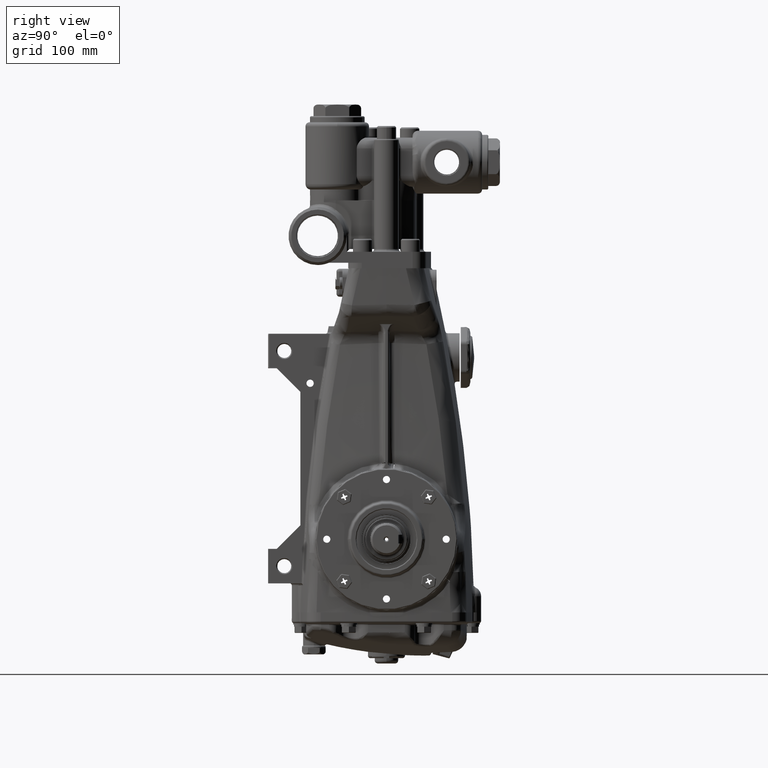
[diagram: clean part render]
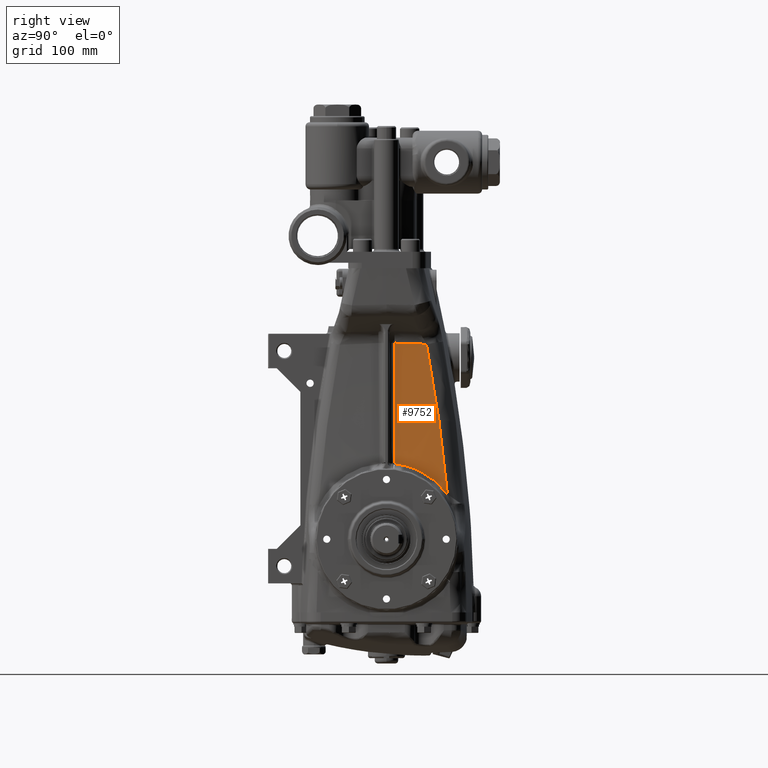
[diagram: same view with one face highlighted and labeled with its STEP entity id]
A machine part, right view. The second image highlights one B-rep face of the part: STEP entity #9752.
In plain terms, the highlighted face is a freeform B-spline surface patch.
Its self-contained STEP definition (entity closure, byte-faithful):
#375 = EDGE_CURVE ( 'NONE', #59738, #2001, #11729, .T. ) ;
#567 = CARTESIAN_POINT ( 'NONE',  ( 3.462199748655711229, -1.175317486001221434, 2.467191601049883332 ) ) ;
#589 = CARTESIAN_POINT ( 'NONE',  ( 3.349694606955345488, 1.975843327882857769, 3.944405702662852509 ) ) ;
#1421 = CARTESIAN_POINT ( 'NONE',  ( 3.477706924474778916, 0.2927391590351144934, 2.768504190964697909 ) ) ;
#2001 = VERTEX_POINT ( 'NONE', #84628 ) ;
#3345 = CARTESIAN_POINT ( 'NONE',  ( 3.347607065475425081, 0.2927214555899236292, 6.262237302901752400 ) ) ;
#3739 = CARTESIAN_POINT ( 'NONE',  ( 3.576220235460202623, 0.6835134000462050885, 0.000000000000000000 ) ) ;
#5196 = CARTESIAN_POINT ( 'NONE',  ( 3.331099628569671012, 1.345986631178405224, 5.774278215223075605 ) ) ;
#5435 = ORIENTED_EDGE ( 'NONE', *, *, #71893, .F. ) ;
#6529 = CARTESIAN_POINT ( 'NONE',  ( 3.412023746535997937, 2.228146809416287066, 1.648877996829962944 ) ) ;
#6976 = FACE_OUTER_BOUND ( 'NONE', #25530, .T. ) ;
#7332 = CARTESIAN_POINT ( 'NONE',  ( 3.472220718430306441, 0.6716334063986347802, 2.701174340641883997 ) ) ;
#7480 = CARTESIAN_POINT ( 'NONE',  ( 3.386209788244205487, 2.139713064070962734, 2.568349735116830068 ) ) ;
#7717 = VERTEX_POINT ( 'NONE', #92963 ) ;
#8309 = CARTESIAN_POINT ( 'NONE',  ( 3.475593993287876771, 0.4834058381449323760, 2.742974295274423380 ) ) ;
#8784 = CARTESIAN_POINT ( 'NONE',  ( 3.433988088125543126, 1.773042593103885567, 2.138417196117650576 ) ) ;
#8902 = CARTESIAN_POINT ( 'NONE',  ( 3.180065221462650360, -1.747121300670816835, 9.081364829396324723 ) ) ;
#9752 = ADVANCED_FACE ( 'NONE', ( #6976 ), #80221, .F. ) ;
#11045 = ORIENTED_EDGE ( 'NONE', *, *, #51086, .F. ) ;
#11102 = CARTESIAN_POINT ( 'NONE',  ( 3.207397325007263156, 1.352893229288899324, 9.081364829396356697 ) ) ;
#11729 = B_SPLINE_CURVE_WITH_KNOTS ( 'NONE', 3,
 ( #79907, #85320, #12650, #42600, #3345, #40657, #19047, #26903, #56354, #49002 ),
 .UNSPECIFIED., .F., .F.,
 ( 4, 3, 3, 4 ),
 ( 0.000000000000000000, 0.01000000000000030378, 0.05000000000002784856, 0.1121356603331099822 ),
 .UNSPECIFIED. ) ;
#12650 = CARTESIAN_POINT ( 'NONE',  ( 3.323190520193768815, 0.2927191873903027264, 6.917950844762834173 ) ) ;
#14363 = CARTESIAN_POINT ( 'NONE',  ( 3.554351997118713413, -1.171670036595711117, 0.000000000000000000 ) ) ;
#14387 = CARTESIAN_POINT ( 'NONE',  ( 3.269692321802373680, 1.460513298219533684, 7.135318008206841256 ) ) ;
#14716 = CARTESIAN_POINT ( 'NONE',  ( 3.469126847361452715, 0.8111619379403480767, 2.662039753391358676 ) ) ;
#14821 = B_SPLINE_CURVE_WITH_KNOTS ( 'NONE', 3,
 ( #75599, #44187, #15683, #96721, #23535, #8784, #75102, #68202, #36797, #45623, #81972, #66738, #89848, #16178, #44641, #14716, #38753, #7332, #46101, #8309, #37288, #1421 ),
 .UNSPECIFIED., .F., .F.,
 ( 4, 2, 2, 2, 2, 2, 2, 2, 2, 2, 4 ),
 ( 9.813077866773594792E-18, 0.007270669729715710169, 0.01454133945943141167, 0.02181200918914711143, 0.02544734405400496044, 0.02908267891886281292, 0.03635334864857851789, 0.04362401837829423673, 0.04725935324315208574, 0.05089468810800994863, 0.05816535783772566054 ),
 .UNSPECIFIED. ) ;
#15683 = CARTESIAN_POINT ( 'NONE',  ( 3.417672550041459090, 2.110429115021122737, 1.801445320440802744 ) ) ;
#15803 = CARTESIAN_POINT ( 'NONE',  ( 3.007765121776432959, -3.046796509488089999, 9.921259842519685179 ) ) ;
#16178 = CARTESIAN_POINT ( 'NONE',  ( 3.463023286000174394, 1.037108040680475796, 2.582588093994256706 ) ) ;
#18469 = CARTESIAN_POINT ( 'NONE',  ( 3.403341269119732893, 2.024586169240023104, 2.467191601049906868 ) ) ;
#19047 = CARTESIAN_POINT ( 'NONE',  ( 3.386674433925234595, 0.2927260709607487077, 5.213095669291894829 ) ) ;
#19060 = B_SPLINE_CURVE_WITH_KNOTS ( 'NONE', 3,
 ( #14387, #89981, #51210, #589, #29580, #7480, #89015, #6529 ),
 .UNSPECIFIED., .F., .F.,
 ( 4, 2, 2, 4 ),
 ( 8.441528768080324345E-17, 0.07039193455788995968, 0.1055879018368349187, 0.1407838691157798916 ),
 .UNSPECIFIED. ) ;
#19444 = CARTESIAN_POINT ( 'NONE',  ( 3.547013876441738489, 1.335291830376295064, 0.000000000000000000 ) ) ;
#19927 = CARTESIAN_POINT ( 'NONE',  ( 3.484935403604872750, -0.6057206102366218259, 2.467191601049883332 ) ) ;
#22677 = CARTESIAN_POINT ( 'NONE',  ( 3.164714206596082491, -3.039356378822984706, 5.774278215223089816 ) ) ;
#22723 = CARTESIAN_POINT ( 'NONE',  ( 3.269692321802373680, 1.460513298219533684, 7.135318008206841256 ) ) ;
#23170 = CARTESIAN_POINT ( 'NONE',  ( 3.289826261678808539, -3.033423029685906602, 2.467191601049866012 ) ) ;
#23535 = CARTESIAN_POINT ( 'NONE',  ( 3.427231623504842339, 1.914841288646969009, 2.010681869798234267 ) ) ;
#23653 = CARTESIAN_POINT ( 'NONE',  ( 3.428323522106980548, -1.729425837595848225, 2.467191601049866900 ) ) ;
#24133 = CARTESIAN_POINT ( 'NONE',  ( 3.183714716260146016, -1.187087684709286384, 9.921259842519649652 ) ) ;
#25530 = EDGE_LOOP ( 'NONE', ( #11045, #67845, #75417, #5435 ) ) ;
#25833 = CARTESIAN_POINT ( 'NONE',  ( 3.336131691620399131, 3.346456692913390540, 0.000000000000000000 ) ) ;
#26321 = CARTESIAN_POINT ( 'NONE',  ( 3.454759606896400381, 1.339861427082650991, 2.467191601049859795 ) ) ;
#26821 = CARTESIAN_POINT ( 'NONE',  ( 3.367677444574750822, -0.2504505581807623948, 5.774278215223089816 ) ) ;
#26903 = CARTESIAN_POINT ( 'NONE',  ( 3.417018087079791933, 0.2927298696226943719, 4.398231824175141469 ) ) ;
#27298 = CARTESIAN_POINT ( 'NONE',  ( 3.244541240855535857, 0.2048016856631995064, 9.081364829396326499 ) ) ;
#27772 = CARTESIAN_POINT ( 'NONE',  ( 3.244541240855531861, -0.2504609453016973797, 9.081364829396326499 ) ) ;
#29580 = CARTESIAN_POINT ( 'NONE',  ( 3.361618648533276410, 2.034251877551805698, 3.486079300572620276 ) ) ;
#30050 = CARTESIAN_POINT ( 'NONE',  ( 3.338676521992537616, -1.180206620310735088, 5.774278215223129784 ) ) ;
#30521 = CARTESIAN_POINT ( 'NONE',  ( 3.336131691620401796, -3.346456692913386544, 0.000000000000000000 ) ) ;
#33676 = CARTESIAN_POINT ( 'NONE',  ( 3.206671794739125225, 0.6886280765714566376, 9.921259842519729588 ) ) ;
#34170 = CARTESIAN_POINT ( 'NONE',  ( 3.370182128241528741, 3.116621155005694366, 0.000000000000000000 ) ) ;
#34665 = CARTESIAN_POINT ( 'NONE',  ( 3.582677165354325233, -0.2504330642496530035, 0.000000000000000000 ) ) ;
#35146 = CARTESIAN_POINT ( 'NONE',  ( 3.088002546773583656, 2.678613266805366599, 9.081364829396360250 ) ) ;
#35317 = B_SPLINE_CURVE_WITH_KNOTS ( 'NONE', 3,
 ( #80940, #67149, #59300, #43142, #65738, #51000 ),
 .UNSPECIFIED., .F., .F.,
 ( 4, 2, 4 ),
 ( 0.004934148018106192940, 0.01978804455404170604, 0.03464194108997721566 ),
 .UNSPECIFIED. ) ;
#36797 = CARTESIAN_POINT ( 'NONE',  ( 3.444332865596592796, 1.542042410792554552, 2.311344156697051400 ) ) ;
#37288 = CARTESIAN_POINT ( 'NONE',  ( 3.476855029519029916, 0.3884509603138865952, 2.758237625161902962 ) ) ;
#37407 = CARTESIAN_POINT ( 'NONE',  ( 3.234376482716079693, -2.497453269063911740, 5.774278215223089816 ) ) ;
#38379 = CARTESIAN_POINT ( 'NONE',  ( 3.520889234658918898, -1.723196813737145172, 0.000000000000000000 ) ) ;
#38753 = CARTESIAN_POINT ( 'NONE',  ( 3.470213245614027109, 0.7650157390332990026, 2.675867407756602478 ) ) ;
#40657 = CARTESIAN_POINT ( 'NONE',  ( 3.367140624842383634, 0.2927236255618101413, 5.737666481446650479 ) ) ;
#41070 = CARTESIAN_POINT ( 'NONE',  ( 3.484300910786971794, 0.6847356054764313082, 2.467191601049853578 ) ) ;
#41546 = CARTESIAN_POINT ( 'NONE',  ( 3.496182075858852656, 2.017557810997037571, 0.000000000000000000 ) ) ;
#42035 = CARTESIAN_POINT ( 'NONE',  ( 3.027047486387744346, 3.128417886226819267, 9.081364829396330052 ) ) ;
#42519 = CARTESIAN_POINT ( 'NONE',  ( 3.056200062463784839, 2.681113705874210940, 9.921259842519724259 ) ) ;
#42600 = CARTESIAN_POINT ( 'NONE',  ( 3.328073829250098647, 0.2927196410302269070, 6.786808136390652280 ) ) ;
#43142 = CARTESIAN_POINT ( 'NONE',  ( 3.291528827503460430, 1.071831288738920085, 7.157747510188548823 ) ) ;
#44187 = CARTESIAN_POINT ( 'NONE',  ( 3.414713312866757278, 2.171058895739299555, 1.726990411664675484 ) ) ;
#44298 = CARTESIAN_POINT ( 'NONE',  ( 2.995305143633843148, 3.129508870004426235, 9.921259842519690508 ) ) ;
#44641 = CARTESIAN_POINT ( 'NONE',  ( 3.465643896110101707, 0.9480041649882693378, 2.617115943367958053 ) ) ;
#45623 = CARTESIAN_POINT ( 'NONE',  ( 3.447712467600018371, 1.461303277406913459, 2.363930898049619422 ) ) ;
#46101 = CARTESIAN_POINT ( 'NONE',  ( 3.473135159087525459, 0.6247011727322953067, 2.712569757845848084 ) ) ;
#46218 = CARTESIAN_POINT ( 'NONE',  ( 3.243259376910913705, -3.346456692913386544, 2.467191601049869121 ) ) ;
#46706 = CARTESIAN_POINT ( 'NONE',  ( 3.304246077622467581, -1.737775380214960919, 5.774278215223091593 ) ) ;
#47981 = EDGE_CURVE ( 'NONE', #7717, #2001, #14821, .T. ) ;
#48426 = CARTESIAN_POINT ( 'NONE',  ( 3.278895081363039754, 2.034007160076365839, 5.774278215223185740 ) ) ;
#49002 = CARTESIAN_POINT ( 'NONE',  ( 3.477706924474778916, 0.2927391590351144934, 2.768504190964697909 ) ) ;
#49396 = CARTESIAN_POINT ( 'NONE',  ( 3.490813648293963123, 0.2047844914236372216, 2.467191601049868233 ) ) ;
#51000 = CARTESIAN_POINT ( 'NONE',  ( 3.269692321802373680, 1.460513298219533684, 7.135318008206841256 ) ) ;
#51086 = EDGE_CURVE ( 'NONE', #59738, #65945, #35317, .T. ) ;
#51210 = CARTESIAN_POINT ( 'NONE',  ( 3.314677885994496087, 1.783796561539602976, 5.316465458283545331 ) ) ;
#51687 = CARTESIAN_POINT ( 'NONE',  ( 3.122716302038380576, 2.047084650748415058, 9.921259842519647876 ) ) ;
#52162 = CARTESIAN_POINT ( 'NONE',  ( 3.383163826581795597, -3.028996562869355369, 0.000000000000000000 ) ) ;
#52635 = CARTESIAN_POINT ( 'NONE',  ( 2.994248404758402149, -3.346456692913386544, 9.081364829396326499 ) ) ;
#53120 = CARTESIAN_POINT ( 'NONE',  ( 3.118770955066280326, -3.346456692913386544, 5.774278215223096922 ) ) ;
#55784 = CARTESIAN_POINT ( 'NONE',  ( 3.152032960981228538, 3.124122137602491467, 5.774278215223089816 ) ) ;
#56354 = CARTESIAN_POINT ( 'NONE',  ( 3.447362342897620557, 0.2927343330170829594, 3.583368001503166589 ) ) ;
#56769 = CARTESIAN_POINT ( 'NONE',  ( 3.213224828743415085, 2.668767787971791261, 5.774278215223104915 ) ) ;
#57236 = CARTESIAN_POINT ( 'NONE',  ( 3.243259376910911929, 3.346456692913388764, 2.467191601049868233 ) ) ;
#59014 = CARTESIAN_POINT ( 'NONE',  ( 3.238563372422959219, -0.6088273537724060436, 9.081364829396299854 ) ) ;
#59300 = CARTESIAN_POINT ( 'NONE',  ( 3.306111735994824663, 0.6824548773842041838, 7.172726748642133110 ) ) ;
#59738 = VERTEX_POINT ( 'NONE', #61972 ) ;
#59976 = CARTESIAN_POINT ( 'NONE',  ( 3.452625984186607155, -2.479611056134223723, 0.000000000000000000 ) ) ;
#61972 = CARTESIAN_POINT ( 'NONE',  ( 3.313423963808419082, 0.2927183479872371707, 7.180236263805937824 ) ) ;
#64109 = CARTESIAN_POINT ( 'NONE',  ( 3.154347447218058598, 2.044436045042683947, 9.081364829396314065 ) ) ;
#64617 = CARTESIAN_POINT ( 'NONE',  ( 3.213268554196682558, -0.2504635833006649825, 9.921259842519685179 ) ) ;
#65085 = CARTESIAN_POINT ( 'NONE',  ( 3.582677165354324789, 0.2047781824377178650, 0.000000000000000000 ) ) ;
#65738 = CARTESIAN_POINT ( 'NONE',  ( 3.281815810567933145, 1.266366989174206203, 7.147771232802056396 ) ) ;
#65945 = VERTEX_POINT ( 'NONE', #22723 ) ;
#66738 = CARTESIAN_POINT ( 'NONE',  ( 3.454235604052612096, 1.296115292389044882, 2.461088219710865665 ) ) ;
#67149 = CARTESIAN_POINT ( 'NONE',  ( 3.310983054772468126, 0.4876467954302492469, 7.177729713678575152 ) ) ;
#67350 = CARTESIAN_POINT ( 'NONE',  ( 2.962623630077036108, -3.346456692913386100, 9.921259842519685179 ) ) ;
#67845 = ORIENTED_EDGE ( 'NONE', *, *, #375, .T. ) ;
#68202 = CARTESIAN_POINT ( 'NONE',  ( 3.442610063453559022, 1.581952432225586680, 2.283835229760922125 ) ) ;
#71000 = CARTESIAN_POINT ( 'NONE',  ( 3.237946347929904878, 0.6881715306006001009, 9.081364829396353144 ) ) ;
#71893 = EDGE_CURVE ( 'NONE', #65945, #7717, #19060, .T. ) ;
#71987 = CARTESIAN_POINT ( 'NONE',  ( 3.338322162289793393, 2.659465695265236018, 2.467191601049872673 ) ) ;
#74253 = CARTESIAN_POINT ( 'NONE',  ( 3.367677444574754375, 0.2047929481494440151, 5.774278215223095145 ) ) ;
#75102 = CARTESIAN_POINT ( 'NONE',  ( 3.437444456445687635, 1.698723534720699924, 2.198762342912546242 ) ) ;
#75417 = ORIENTED_EDGE ( 'NONE', *, *, #47981, .F. ) ;
#75599 = CARTESIAN_POINT ( 'NONE',  ( 3.412023746535997937, 2.228146809416287066, 1.648877996829962944 ) ) ;
#75720 = CARTESIAN_POINT ( 'NONE',  ( 3.215099385775566976, -1.185694051413377359, 9.081364829396305183 ) ) ;
#76688 = CARTESIAN_POINT ( 'NONE',  ( 3.109258477031473955, -2.508475066898988803, 9.081364829396324723 ) ) ;
#78388 = CARTESIAN_POINT ( 'NONE',  ( 3.118770955066280326, 3.346456692913385655, 5.774278215223095145 ) ) ;
#79341 = CARTESIAN_POINT ( 'NONE',  ( 3.490813648293961791, -0.2504405389293088424, 2.467191601049866012 ) ) ;
#79824 = CARTESIAN_POINT ( 'NONE',  ( 3.361718471530574792, -0.6071899308826437247, 5.774278215223129784 ) ) ;
#79907 = CARTESIAN_POINT ( 'NONE',  ( 3.313423963808419082, 0.2927183479872371707, 7.180236263805937824 ) ) ;
#80221 = B_SPLINE_SURFACE_WITH_KNOTS ( 'NONE', 3, 3, ( 
 ( #25833, #57236, #78388, #93122, #94100 ),
 ( #34170, #95061, #55784, #42035, #44298 ),
 ( #85732, #71987, #56769, #35146, #42519 ),
 ( #41546, #18469, #48426, #64109, #51687 ),
 ( #19444, #26321, #5196, #11102, #93602 ),
 ( #3739, #41070, #87195, #71000, #33676 ),
 ( #65085, #49396, #74253, #27298, #86235 ),
 ( #34665, #79341, #26821, #27772, #64617 ),
 ( #94581, #19927, #79824, #59014, #81604 ),
 ( #14363, #567, #30050, #75720, #24133 ),
 ( #38379, #23653, #46706, #8902, #82079 ),
 ( #59976, #82558, #37407, #76688, #89958 ),
 ( #52162, #23170, #22677, #83058, #15803 ),
 ( #30521, #46218, #53120, #52635, #67350 ) ),
 .UNSPECIFIED., .F., .F., .F.,
 ( 4, 1, 1, 1, 1, 2, 1, 1, 1, 1, 4 ),
 ( 4, 1, 4 ),
 ( 0.1586431789111423796, 0.1929639621870227195, 0.2287681097253262408, 0.2560747880780795960, 0.2983581534718249273, 0.3296355460450030028, 0.3678860930050805722, 0.3841297952030450213, 0.4172474699368756701, 0.4532222425079813766, 0.5006279131788632375 ),
 ( 0.000000000000000000, 0.7460317460317461569, 1.000000000000000000 ),
 .UNSPECIFIED. ) ;
#80940 = CARTESIAN_POINT ( 'NONE',  ( 3.313423963808419082, 0.2927183479872371707, 7.180236263805937824 ) ) ;
#81604 = CARTESIAN_POINT ( 'NONE',  ( 3.207285886935310693, -0.6092432072047266889, 9.921259842519644323 ) ) ;
#81972 = CARTESIAN_POINT ( 'NONE',  ( 3.449372806653788537, 1.420399891638339573, 2.389070443333108251 ) ) ;
#82079 = CARTESIAN_POINT ( 'NONE',  ( 3.148527226247458621, -1.749494867770716278, 9.921259842519683403 ) ) ;
#82558 = CARTESIAN_POINT ( 'NONE',  ( 3.359373924467381478, -2.487234547113272409, 2.467191601049866012 ) ) ;
#83058 = CARTESIAN_POINT ( 'NONE',  ( 3.039552278195602586, -3.045289647581233439, 9.081364829396326499 ) ) ;
#84628 = CARTESIAN_POINT ( 'NONE',  ( 3.477706924474778916, 0.2927391590351144934, 2.768504190964697909 ) ) ;
#85320 = CARTESIAN_POINT ( 'NONE',  ( 3.318307231331997009, 0.2927187559611116319, 7.049093553887074037 ) ) ;
#85732 = CARTESIAN_POINT ( 'NONE',  ( 3.431648744459313782, 2.652526038801615194, 0.000000000000000000 ) ) ;
#86235 = CARTESIAN_POINT ( 'NONE',  ( 3.213268554196686555, 0.2048039047143119795, 9.921259842519685179 ) ) ;
#87195 = CARTESIAN_POINT ( 'NONE',  ( 3.361089901118596845, 0.6863738808403515579, 5.774278215223060506 ) ) ;
#89015 = CARTESIAN_POINT ( 'NONE',  ( 3.398877834969281864, 2.186773139856743153, 2.108903812612397566 ) ) ;
#89848 = CARTESIAN_POINT ( 'NONE',  ( 3.457319253985625451, 1.211163671208432158, 2.504574368776081084 ) ) ;
#89958 = CARTESIAN_POINT ( 'NONE',  ( 3.077482475587764554, -2.511274253650753963, 9.921259842519685179 ) ) ;
#89981 = CARTESIAN_POINT ( 'NONE',  ( 3.292354361583460065, 1.633310939118002514, 6.227655735173276419 ) ) ;
#92963 = CARTESIAN_POINT ( 'NONE',  ( 3.412023746535997937, 2.228146809416287066, 1.648877996829962944 ) ) ;
#93122 = CARTESIAN_POINT ( 'NONE',  ( 2.994248404758402149, 3.346456692913390096, 9.081364829396326499 ) ) ;
#93602 = CARTESIAN_POINT ( 'NONE',  ( 3.175980866959666749, 1.354647285951881885, 9.921259842519729588 ) ) ;
#94100 = CARTESIAN_POINT ( 'NONE',  ( 2.962623630077036108, 3.346456692913390096, 9.921259842519685179 ) ) ;
#94581 = CARTESIAN_POINT ( 'NONE',  ( 3.576859146580936066, -0.6046244503895895628, 0.000000000000000000 ) ) ;
#95061 = CARTESIAN_POINT ( 'NONE',  ( 3.276972938593945894, 3.119826120297053418, 2.467191601049866012 ) ) ;
#96721 = CARTESIAN_POINT ( 'NONE',  ( 3.423931368744911552, 1.982320691899027931, 1.943291457284399115 ) ) ;